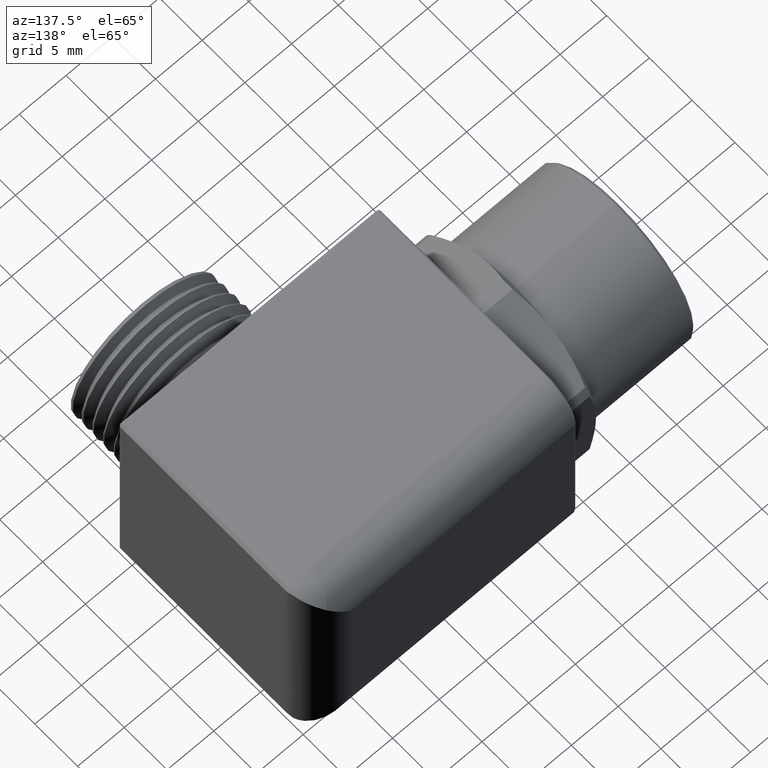
[diagram: clean part render]
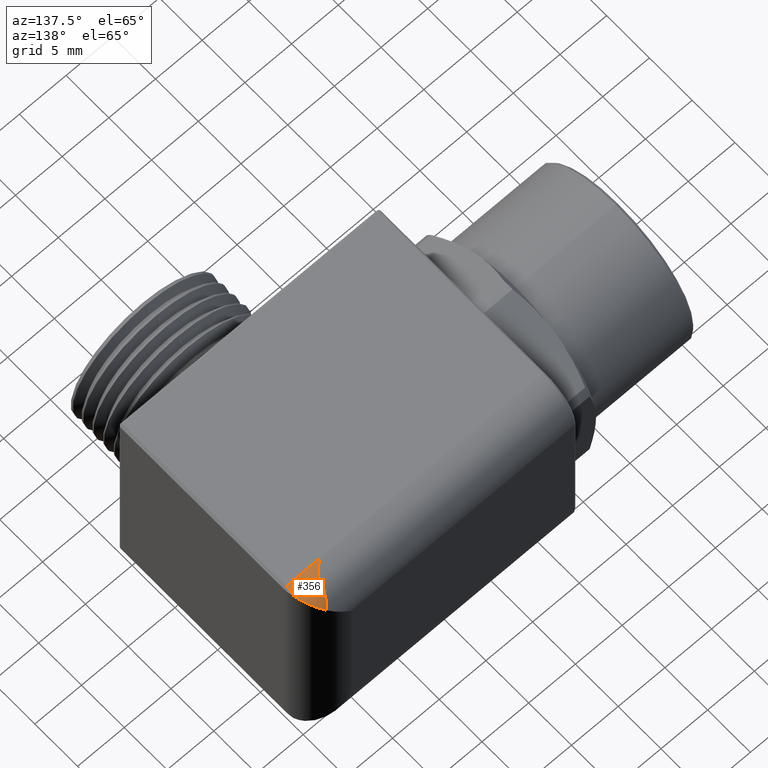
[diagram: same view with one face highlighted and labeled with its STEP entity id]
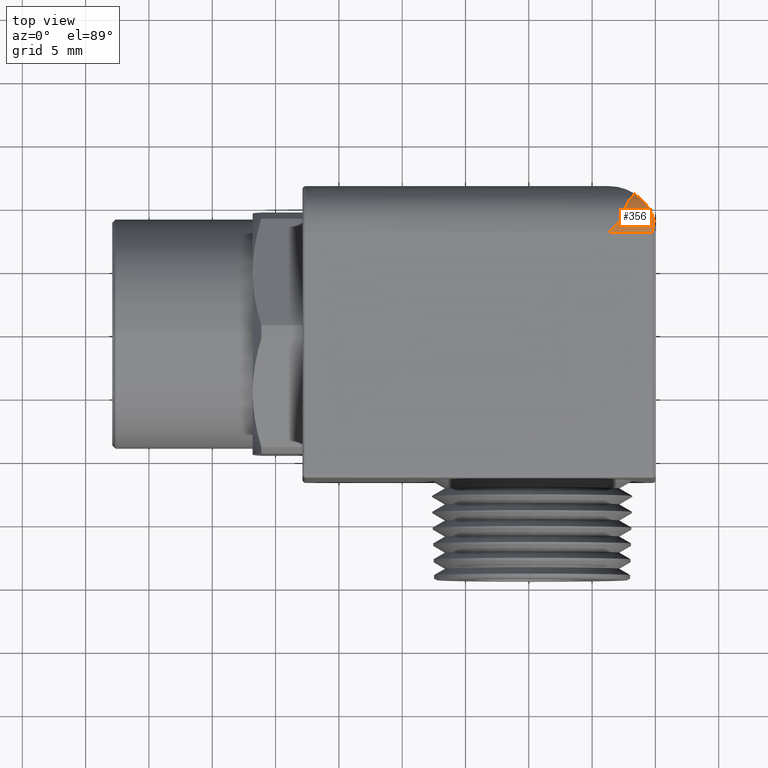
[diagram: same view with one face highlighted and labeled with its STEP entity id]
A machine part, auxiliary view. The second image highlights one B-rep face of the part: STEP entity #356.
A second angle (top view) of the same face is appended — the face is thin or edge-on in the first view.
In plain terms, the highlighted cylindrical surface (partial cylindrical patch) has radius 3.7465 mm, axis along (-1, 0, 0).
Its self-contained STEP definition (entity closure, byte-faithful):
#356 = ADVANCED_FACE ( 'NONE', ( #1790 ), #1788, .T. ) ;
#357 = EDGE_LOOP ( 'NONE', ( #358, #372, #362, #364, #365 ) ) ;
#358 = ORIENTED_EDGE ( 'NONE', *, *, #370, .F. ) ;
#362 = ORIENTED_EDGE ( 'NONE', *, *, #363, .F. ) ;
#363 = EDGE_CURVE ( 'NONE', #908, #374, #1774, .T. ) ;
#364 = ORIENTED_EDGE ( 'NONE', *, *, #907, .T. ) ;
#365 = ORIENTED_EDGE ( 'NONE', *, *, #917, .T. ) ;
#370 = EDGE_CURVE ( 'NONE', #371, #941, #1811, .T. ) ;
#371 = VERTEX_POINT ( 'NONE', #1807 ) ;
#372 = ORIENTED_EDGE ( 'NONE', *, *, #373, .T. ) ;
#373 = EDGE_CURVE ( 'NONE', #371, #374, #1805, .T. ) ;
#374 = VERTEX_POINT ( 'NONE', #1806 ) ;
#907 = EDGE_CURVE ( 'NONE', #908, #915, #2783, .T. ) ;
#908 = VERTEX_POINT ( 'NONE', #2782 ) ;
#915 = VERTEX_POINT ( 'NONE', #2758 ) ;
#917 = EDGE_CURVE ( 'NONE', #915, #941, #2521, .T. ) ;
#941 = VERTEX_POINT ( 'NONE', #2826 ) ;
#1772 = CARTESIAN_POINT ( 'NONE',  ( 0.7531174990272910800, 0.4099412924514032100, 0.4196174990272907900 ) ) ;
#1773 = CARTESIAN_POINT ( 'NONE',  ( 0.7230617478217206100, 0.4300647565348391700, 0.3895617478217202600 ) ) ;
#1774 =( BOUNDED_CURVE ( )  B_SPLINE_CURVE ( 3, ( #1773, #1772, #1822, #1821 ),
 .UNSPECIFIED., .F., .T. ) 
 B_SPLINE_CURVE_WITH_KNOTS ( ( 4, 4 ),
 ( 5.302376716956534800, 6.022066287409543900 ),
 .UNSPECIFIED. ) 
 CURVE ( )  GEOMETRIC_REPRESENTATION_ITEM ( )  RATIONAL_B_SPLINE_CURVE ( ( 1.000000000000000000, 0.9573009937129355300, 0.9573009937129355300, 1.000000000000000000 ) ) 
 REPRESENTATION_ITEM ( '' )  );
#1784 = DIRECTION ( 'NONE',  ( 0.0000000000000000000, 0.0000000000000000000, 1.000000000000000000 ) ) ;
#1785 = DIRECTION ( 'NONE',  ( -1.000000000000000000, 0.0000000000000000000, 0.0000000000000000000 ) ) ;
#1786 = CARTESIAN_POINT ( 'NONE',  ( 0.7885000000000000900, 0.3075000000000000000, 0.3075000000000000000 ) ) ;
#1787 = AXIS2_PLACEMENT_3D ( 'NONE', #1786, #1785, #1784 ) ;
#1788 = CYLINDRICAL_SURFACE ( 'NONE', #1787, 0.1474999999999999900 ) ;
#1790 = FACE_OUTER_BOUND ( 'NONE', #357, .T. ) ;
#1801 = CARTESIAN_POINT ( 'NONE',  ( 0.7835000000000003100, 0.3455788655293195500, 0.4499999999999999600 ) ) ;
#1802 = CARTESIAN_POINT ( 'NONE',  ( 0.7801761770640949200, 0.3331403445339445300, 0.4533238229359052900 ) ) ;
#1803 = CARTESIAN_POINT ( 'NONE',  ( 0.7785000000000001900, 0.3203749603285461200, 0.4550000000000000700 ) ) ;
#1804 = CARTESIAN_POINT ( 'NONE',  ( 0.7785000000000003000, 0.3075000000000000000, 0.4550000000000000200 ) ) ;
#1805 =( BOUNDED_CURVE ( )  B_SPLINE_CURVE ( 3, ( #1804, #1803, #1802, #1801 ),
 .UNSPECIFIED., .F., .T. ) 
 B_SPLINE_CURVE_WITH_KNOTS ( ( 4, 4 ),
 ( 8.141100372253253400E-017, 0.2611190197700425900 ),
 .UNSPECIFIED. ) 
 CURVE ( )  GEOMETRIC_REPRESENTATION_ITEM ( )  RATIONAL_B_SPLINE_CURVE ( ( 1.000000000000000000, 0.9943261379529790800, 0.9943261379529790800, 1.000000000000000000 ) ) 
 REPRESENTATION_ITEM ( '' )  );
#1806 = CARTESIAN_POINT ( 'NONE',  ( 0.7835000000000003100, 0.3455788655293195500, 0.4499999999999999600 ) ) ;
#1807 = CARTESIAN_POINT ( 'NONE',  ( 0.7785000000000003000, 0.3075000000000000000, 0.4550000000000000200 ) ) ;
#1808 = DIRECTION ( 'NONE',  ( -1.000000000000000000, 0.0000000000000000000, 0.0000000000000000000 ) ) ;
#1809 = VECTOR ( 'NONE', #1808, 39.37007874015748100 ) ;
#1810 = CARTESIAN_POINT ( 'NONE',  ( 0.7885000000000000900, 0.3075000000000000000, 0.4550000000000000200 ) ) ;
#1811 = LINE ( 'NONE', #1810, #1809 ) ;
#1821 = CARTESIAN_POINT ( 'NONE',  ( 0.7835000000000003100, 0.3455788655293195500, 0.4499999999999999600 ) ) ;
#1822 = CARTESIAN_POINT ( 'NONE',  ( 0.7741621696081594200, 0.3805232057122690000, 0.4406621696081590200 ) ) ;
#2521 =( BOUNDED_CURVE ( )  B_SPLINE_CURVE ( 3, ( #2813, #2812, #2811, #2810 ),
 .UNSPECIFIED., .F., .F. ) 
 B_SPLINE_CURVE_WITH_KNOTS ( ( 4, 4 ),
 ( 4.372552070930567900, 4.712388980384689700 ),
 .UNSPECIFIED. ) 
 CURVE ( )  GEOMETRIC_REPRESENTATION_ITEM ( )  RATIONAL_B_SPLINE_CURVE ( ( 1.000000000000000000, 0.9903990397689925700, 0.9903990397689925700, 1.000000000000000000 ) ) 
 REPRESENTATION_ITEM ( '' )  );
#2758 = CARTESIAN_POINT ( 'NONE',  ( 0.6901666666666668200, 0.3566666666666666300, 0.4465643336333542900 ) ) ;
#2773 = CARTESIAN_POINT ( 'NONE',  ( 0.6901666666666668200, 0.3566666666666666300, 0.4465643336333542900 ) ) ;
#2774 = CARTESIAN_POINT ( 'NONE',  ( 0.6901666666666669300, 0.3647379555830722000, 0.4437107020705012300 ) ) ;
#2775 = CARTESIAN_POINT ( 'NONE',  ( 0.6911422295326278300, 0.3723471729041453700, 0.4402380204814934100 ) ) ;
#2776 = CARTESIAN_POINT ( 'NONE',  ( 0.6945940891134281300, 0.3867680561163972000, 0.4321640011973514900 ) ) ;
#2777 = CARTESIAN_POINT ( 'NONE',  ( 0.6971026298922021700, 0.3935805845397224400, 0.4275346601012710600 ) ) ;
#2778 = CARTESIAN_POINT ( 'NONE',  ( 0.7060765522608892800, 0.4120066008092621600, 0.4127728218896288800 ) ) ;
#2779 = CARTESIAN_POINT ( 'NONE',  ( 0.7141739829084085000, 0.4221408473058228000, 0.4013966408289769100 ) ) ;
#2780 = CARTESIAN_POINT ( 'NONE',  ( 0.7230617478217206100, 0.4300647565348391700, 0.3895617478217202600 ) ) ;
#2782 = CARTESIAN_POINT ( 'NONE',  ( 0.7230617478217206100, 0.4300647565348391700, 0.3895617478217202600 ) ) ;
#2783 = B_SPLINE_CURVE_WITH_KNOTS ( 'NONE', 3,
 ( #2780, #2779, #2778, #2777, #2776, #2775, #2774, #2773 ),
 .UNSPECIFIED., .F., .F.,
 ( 4, 2, 2, 4 ),
 ( 0.002774656129108273000, 0.004067095591102575500, 0.004713315322099724500, 0.005359535053096874500 ),
 .UNSPECIFIED. ) ;
#2810 = CARTESIAN_POINT ( 'NONE',  ( 0.6409999999999996800, 0.3075000000000000000, 0.4550000000000000200 ) ) ;
#2811 = CARTESIAN_POINT ( 'NONE',  ( 0.6577895571114901200, 0.3242895571114903800, 0.4550000000000000200 ) ) ;
#2812 = CARTESIAN_POINT ( 'NONE',  ( 0.6743373204177951500, 0.3408373204177951900, 0.4521608526705178100 ) ) ;
#2813 = CARTESIAN_POINT ( 'NONE',  ( 0.6901666666666668200, 0.3566666666666666300, 0.4465643336333542900 ) ) ;
#2826 = CARTESIAN_POINT ( 'NONE',  ( 0.6409999999999996800, 0.3075000000000000000, 0.4550000000000000200 ) ) ;